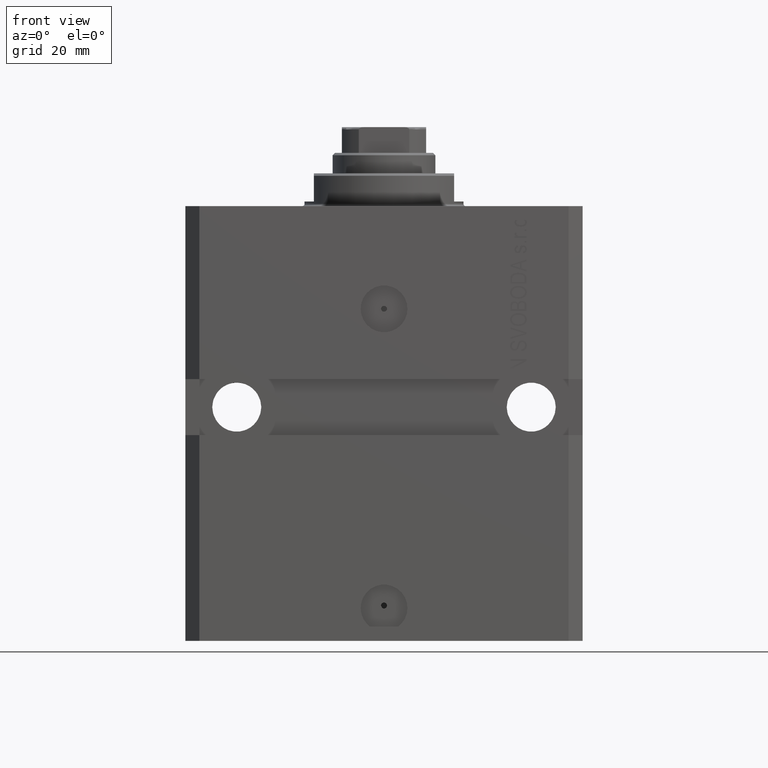
[diagram: clean part render]
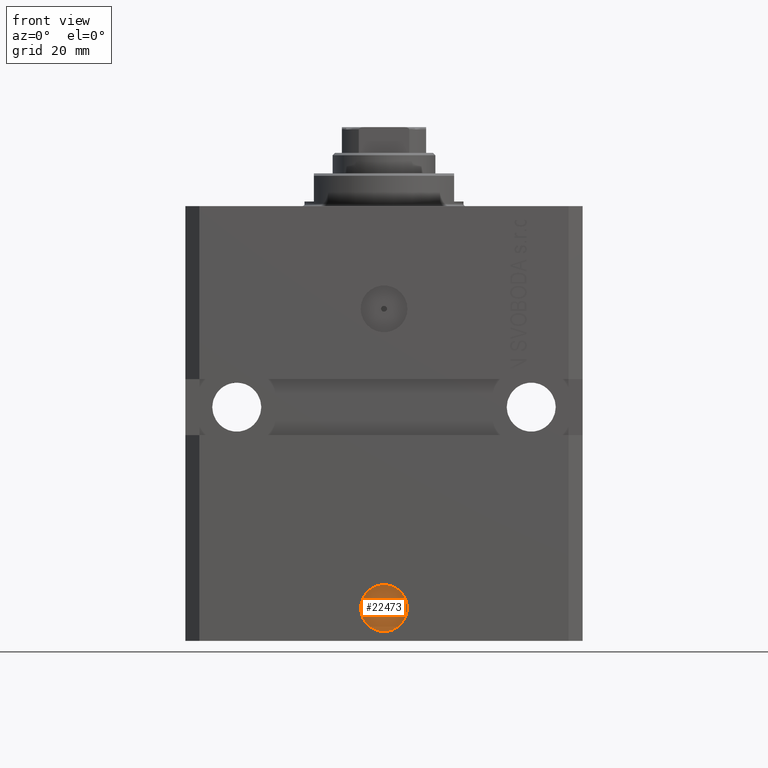
[diagram: same view with one face highlighted and labeled with its STEP entity id]
A machine part, front view. The second image highlights one B-rep face of the part: STEP entity #22473.
In plain terms, the highlighted planar face has unit normal (0, -1, 0).
Its self-contained STEP definition (entity closure, byte-faithful):
#302 = CARTESIAN_POINT ( 'NONE',  ( 3.481207789079292456E-15, -29.60000000000000142, -85.47499999999999432 ) ) ;
#1345 = PLANE ( 'NONE',  #24735 ) ;
#2716 = CARTESIAN_POINT ( 'NONE',  ( 0.6250000000000072164, -29.60000000000000142, -85.47499999999999432 ) ) ;
#3649 = CIRCLE ( 'NONE', #38296, 0.6250000000000036637 ) ;
#4603 = AXIS2_PLACEMENT_3D ( 'NONE', #44365, #29954, #34281 ) ;
#7167 = ORIENTED_EDGE ( 'NONE', *, *, #15387, .F. ) ;
#8021 = CARTESIAN_POINT ( 'NONE',  ( -2.234559053800897838E-16, -29.60000000000000142, -86.00000000000000000 ) ) ;
#9207 = EDGE_LOOP ( 'NONE', ( #7167, #40234 ) ) ;
#10299 = ORIENTED_EDGE ( 'NONE', *, *, #20329, .T. ) ;
#10943 = CIRCLE ( 'NONE', #35572, 5.000000000000006217 ) ;
#11275 = ORIENTED_EDGE ( 'NONE', *, *, #28711, .T. ) ;
#11497 = CARTESIAN_POINT ( 'NONE',  ( -0.6250000000000002220, -29.60000000000000142, -85.47499999999999432 ) ) ;
#13925 = VERTEX_POINT ( 'NONE', #11497 ) ;
#13942 = VERTEX_POINT ( 'NONE', #19209 ) ;
#15387 = EDGE_CURVE ( 'NONE', #31095, #13925, #3649, .T. ) ;
#16036 = DIRECTION ( 'NONE',  ( 1.176083712526788232E-16, -1.000000000000000000, 0.000000000000000000 ) ) ;
#16994 = DIRECTION ( 'NONE',  ( 1.000000000000000000, 1.176083712526788232E-16, 0.000000000000000000 ) ) ;
#18431 = DIRECTION ( 'NONE',  ( 1.176083712526788232E-16, -1.000000000000000000, 0.000000000000000000 ) ) ;
#19209 = CARTESIAN_POINT ( 'NONE',  ( 5.000000000000006217, -29.60000000000000142, -86.00000000000000000 ) ) ;
#20039 = CIRCLE ( 'NONE', #4603, 5.000000000000006217 ) ;
#20329 = EDGE_CURVE ( 'NONE', #13942, #42312, #20039, .T. ) ;
#22026 = EDGE_LOOP ( 'NONE', ( #10299, #11275 ) ) ;
#22473 = ADVANCED_FACE ( 'NONE', ( #30987, #27609 ), #1345, .T. ) ;
#22503 = DIRECTION ( 'NONE',  ( 1.000000000000000000, 0.000000000000000000, 0.000000000000000000 ) ) ;
#22726 = DIRECTION ( 'NONE',  ( 1.176083712526788232E-16, -1.000000000000000000, 0.000000000000000000 ) ) ;
#22775 = CARTESIAN_POINT ( 'NONE',  ( 3.481207789079292456E-15, -29.60000000000000142, -85.47499999999999432 ) ) ;
#24735 = AXIS2_PLACEMENT_3D ( 'NONE', #46099, #16036, #16994 ) ;
#27609 = FACE_OUTER_BOUND ( 'NONE', #22026, .T. ) ;
#28711 = EDGE_CURVE ( 'NONE', #42312, #13942, #10943, .T. ) ;
#29954 = DIRECTION ( 'NONE',  ( 1.176083712526788232E-16, -1.000000000000000000, 0.000000000000000000 ) ) ;
#30432 = DIRECTION ( 'NONE',  ( 1.000000000000000000, 0.000000000000000000, 0.000000000000000000 ) ) ;
#30987 = FACE_BOUND ( 'NONE', #9207, .T. ) ;
#31095 = VERTEX_POINT ( 'NONE', #2716 ) ;
#33846 = DIRECTION ( 'NONE',  ( 1.000000000000000000, 0.000000000000000000, 0.000000000000000000 ) ) ;
#34281 = DIRECTION ( 'NONE',  ( 1.000000000000000000, 0.000000000000000000, 0.000000000000000000 ) ) ;
#34483 = EDGE_CURVE ( 'NONE', #13925, #31095, #38047, .T. ) ;
#35572 = AXIS2_PLACEMENT_3D ( 'NONE', #8021, #36709, #22503 ) ;
#36709 = DIRECTION ( 'NONE',  ( 1.176083712526788232E-16, -1.000000000000000000, 0.000000000000000000 ) ) ;
#38047 = CIRCLE ( 'NONE', #44948, 0.6250000000000036637 ) ;
#38296 = AXIS2_PLACEMENT_3D ( 'NONE', #302, #22726, #30432 ) ;
#40234 = ORIENTED_EDGE ( 'NONE', *, *, #34483, .F. ) ;
#42312 = VERTEX_POINT ( 'NONE', #47349 ) ;
#44365 = CARTESIAN_POINT ( 'NONE',  ( -2.234559053800897838E-16, -29.60000000000000142, -86.00000000000000000 ) ) ;
#44948 = AXIS2_PLACEMENT_3D ( 'NONE', #22775, #18431, #33846 ) ;
#46099 = CARTESIAN_POINT ( 'NONE',  ( -2.234559053800897838E-16, -29.60000000000000142, -86.00000000000000000 ) ) ;
#47349 = CARTESIAN_POINT ( 'NONE',  ( -5.000000000000006217, -29.60000000000000142, -86.00000000000000000 ) ) ;